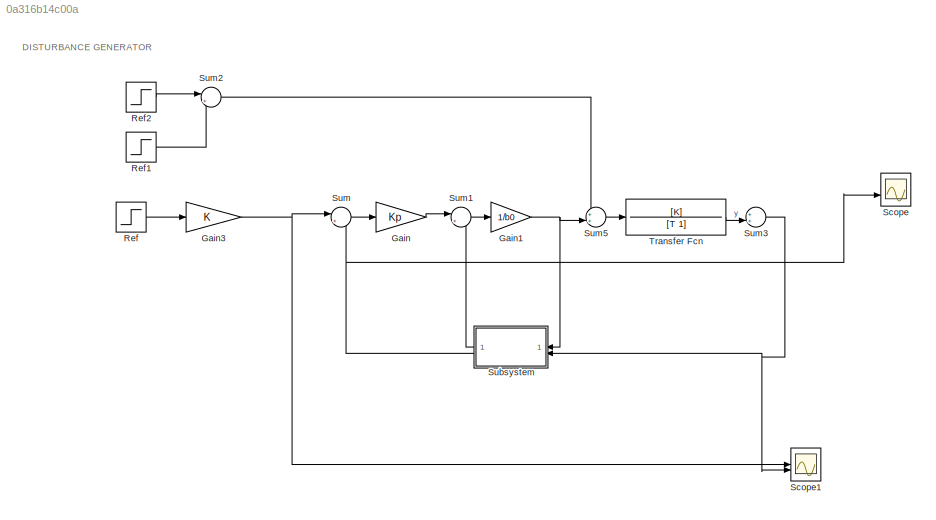
MODEL slx_0a316b14c00a
KIND model
CONFIG AbsTol = auto
CONFIG EnableMultiTasking = off
CONFIG FixedStep = auto
CONFIG MaxStep = auto
CONFIG MinStep = auto
CONFIG RelTol = 1e-3
CONFIG SampleTimeConstraint = Unconstrained
CONFIG SolverName = VariableStepAuto
CONFIG StartTime = 0.0
CONFIG StopTime = 20
BLOCK [Gain] Gain
  Gain = Kp
BLOCK [Gain] Gain1
  Gain = 1/b0
BLOCK [Gain] Gain3
BLOCK [Step] Ref
  SampleTime = 0
BLOCK [Step] Ref1
  SampleTime = 0
  Time = 10
BLOCK [Step] Ref2
  After = -1
  SampleTime = 0
  Time = 15
BLOCK [Scope] Scope
  Floating = off
  NumInputPorts = 2
  ScopeSpecificationString = Simulink.scopes.TimeScopeBlockCfg('CurrentConfiguration', extmgr.ConfigurationSet(extmgr.Configuration('Core','General UI',true),extmgr.Configuration('Core','Source UI',true),extmgr.Configuration('Sources','WiredSimulink',true),extmgr.Configuration('Visuals','Time Domain',true,'SerializedDisplays',{struct('MinYLimReal','-0.14063','MaxYLimReal','1.26564','YLabelReal','','MinYLimMag','0.00000','MaxY...<+1433ch>
BLOCK [Scope] Scope1
  Floating = off
  NumInputPorts = 2
  ScopeSpecificationString = Simulink.scopes.TimeScopeBlockCfg('CurrentConfiguration', extmgr.ConfigurationSet(extmgr.Configuration('Core','General UI',true),extmgr.Configuration('Core','Source UI',true),extmgr.Configuration('Sources','WiredSimulink',true,'DataLoggingVariableName','ScopeData1'),extmgr.Configuration('Visuals','Time Domain',true,'SerializedDisplays',{struct('MinYLimReal','-0.12732','MaxYLimReal','1.14584','YLab...<+1413ch>
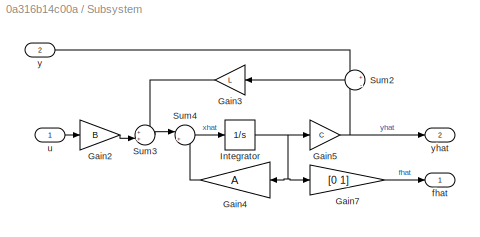
BLOCK [SubSystem] Subsystem
BLOCK [Gain] Subsystem/Gain2
  Gain = B
  Multiplication = Matrix(K*u)
BLOCK [Gain] Subsystem/Gain3
  Gain = L
  Multiplication = Matrix(K*u)
BLOCK [Gain] Subsystem/Gain4
  Gain = A
  Multiplication = Matrix(K*u)
BLOCK [Gain] Subsystem/Gain5
  Gain = C
  Multiplication = Matrix(K*u)
BLOCK [Gain] Subsystem/Gain7
  Gain = [0 1]
  Multiplication = Matrix(K*u)
BLOCK [Integrator] Subsystem/Integrator
BLOCK [Sum] Subsystem/Sum2
  Inputs = +|-
BLOCK [Sum] Subsystem/Sum3
  Inputs = ++|
BLOCK [Sum] Subsystem/Sum4
  Inputs = |++
BLOCK [Outport] Subsystem/fhat
BLOCK [Inport] Subsystem/u
BLOCK [Inport] Subsystem/y
  Port = 2
BLOCK [Outport] Subsystem/yhat
  Port = 2
BLOCK [Sum] Sum
  Inputs = |+-
BLOCK [Sum] Sum1
  Inputs = |+-
BLOCK [Sum] Sum2
  Inputs = |++
BLOCK [Sum] Sum3
  Inputs = ++|
BLOCK [Sum] Sum5
  Inputs = ++|
BLOCK [TransferFcn] Transfer Fcn
  Denominator = [T 1]
  Numerator = [K]
ANNOTATION (root): DISTURBANCE GENERATOR
NET Gain1:1 -> Subsystem:1, Sum5:2
NET Gain3:1 -> Scope1:1, Sum:1
LINE Gain:1 -> Sum1:1
LINE Ref1:1 -> Sum2:2
LINE Ref2:1 -> Sum2:1
LINE Ref:1 -> Gain3:1
LINE Subsystem/Gain2:1 -> Subsystem/Sum3:2
LINE Subsystem/Gain3:1 -> Subsystem/Sum3:1
LINE Subsystem/Gain4:1 -> Subsystem/Sum4:2
NET Subsystem/Gain5:1 -> Subsystem/Sum2:2, Subsystem/yhat:1
LINE Subsystem/Gain7:1 -> Subsystem/fhat:1
NET Subsystem/Integrator:1 -> Subsystem/Gain4:1, Subsystem/Gain5:1, Subsystem/Gain7:1
LINE Subsystem/Sum2:1 -> Subsystem/Gain3:1
LINE Subsystem/Sum3:1 -> Subsystem/Sum4:1
LINE Subsystem/Sum4:1 -> Subsystem/Integrator:1
LINE Subsystem/u:1 -> Subsystem/Gain2:1
LINE Subsystem/y:1 -> Subsystem/Sum2:1
LINE Subsystem:1 -> Sum1:2
NET Subsystem:2 -> Scope:2, Sum:2
LINE Sum1:1 -> Gain1:1
LINE Sum2:1 -> Sum5:1
NET Sum3:1 -> Scope1:2, Subsystem:2
LINE Sum5:1 -> Transfer Fcn:1
LINE Sum:1 -> Gain:1
LINE Transfer Fcn:1 -> Sum3:2
note: NET lines group one-source signal fan-out (src -> all destinations, sorted); 1:1 wires keep LINE
